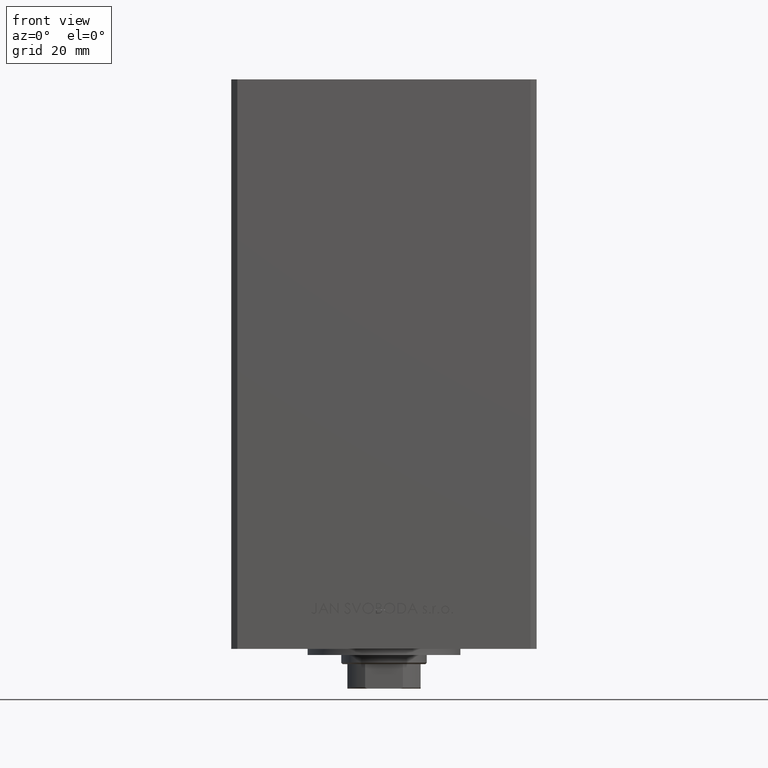
[diagram: clean part render]
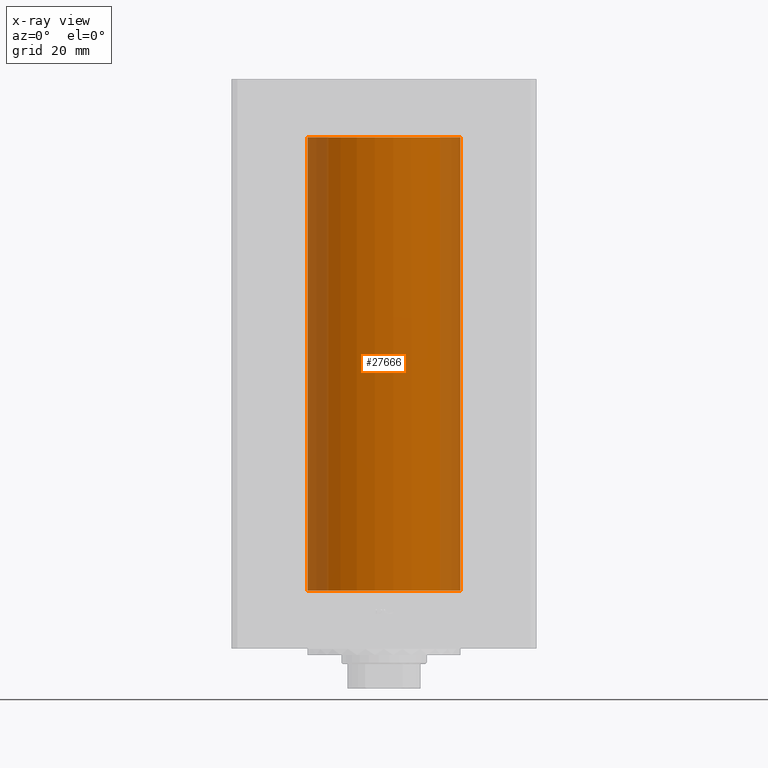
[diagram: x-ray — body ghosted, one internal face saturated and labeled with its STEP entity id]
A machine part, front view, then the same camera in x-ray: the body is ghosted and one INTERNAL B-rep face — a face not visible from any outside direction — is saturated and labeled: STEP entity #27666.
In plain terms, the highlighted cylindrical surface (partial cylindrical patch) has radius 25 mm, axis along (-0, -0, -1).
Its self-contained STEP definition (entity closure, byte-faithful):
#1744 = AXIS2_PLACEMENT_3D ( 'NONE', #31601, #8244, #46748 ) ;
#2388 = CARTESIAN_POINT ( 'NONE',  ( 0.000000000000000000, 0.000000000000000000, 0.000000000000000000 ) ) ;
#3133 = ORIENTED_EDGE ( 'NONE', *, *, #22912, .F. ) ;
#7223 = DIRECTION ( 'NONE',  ( -0.000000000000000000, -0.000000000000000000, -1.000000000000000000 ) ) ;
#8244 = DIRECTION ( 'NONE',  ( -0.000000000000000000, -0.000000000000000000, -1.000000000000000000 ) ) ;
#8840 = ORIENTED_EDGE ( 'NONE', *, *, #17920, .F. ) ;
#9288 = DIRECTION ( 'NONE',  ( -0.000000000000000000, 0.000000000000000000, 1.000000000000000000 ) ) ;
#9852 = CARTESIAN_POINT ( 'NONE',  ( 25.00000000000000000, 3.061616997868383043E-15, 148.5000000000000000 ) ) ;
#9975 = DIRECTION ( 'NONE',  ( -0.000000000000000000, -0.000000000000000000, -1.000000000000000000 ) ) ;
#10243 = AXIS2_PLACEMENT_3D ( 'NONE', #31930, #9288, #24456 ) ;
#10398 = CARTESIAN_POINT ( 'NONE',  ( -25.00000000000000000, 0.000000000000000000, 0.000000000000000000 ) ) ;
#11685 = CARTESIAN_POINT ( 'NONE',  ( 25.00000000000000000, 3.061616997868383043E-15, 148.5000000000000000 ) ) ;
#14026 = ORIENTED_EDGE ( 'NONE', *, *, #45930, .T. ) ;
#16495 = CARTESIAN_POINT ( 'NONE',  ( 25.00000000000000000, 3.061616997868383043E-15, 0.000000000000000000 ) ) ;
#17310 = DIRECTION ( 'NONE',  ( -0.000000000000000000, 0.000000000000000000, 1.000000000000000000 ) ) ;
#17920 = EDGE_CURVE ( 'NONE', #20097, #40903, #32855, .T. ) ;
#18065 = EDGE_CURVE ( 'NONE', #40419, #34075, #37784, .T. ) ;
#19452 = FACE_OUTER_BOUND ( 'NONE', #44530, .T. ) ;
#20097 = VERTEX_POINT ( 'NONE', #24302 ) ;
#21690 = ORIENTED_EDGE ( 'NONE', *, *, #18065, .T. ) ;
#22912 = EDGE_CURVE ( 'NONE', #40903, #34075, #24626, .T. ) ;
#24302 = CARTESIAN_POINT ( 'NONE',  ( -25.00000000000000000, 0.000000000000000000, 148.5000000000000000 ) ) ;
#24456 = DIRECTION ( 'NONE',  ( 1.000000000000000000, 0.000000000000000000, 0.000000000000000000 ) ) ;
#24626 = CIRCLE ( 'NONE', #40464, 25.00000000000000000 ) ;
#25374 = CARTESIAN_POINT ( 'NONE',  ( -25.00000000000000000, 0.000000000000000000, 148.5000000000000000 ) ) ;
#27666 = ADVANCED_FACE ( 'NONE', ( #19452 ), #46030, .F. ) ;
#28422 = VECTOR ( 'NONE', #7223, 1000.000000000000000 ) ;
#31601 = CARTESIAN_POINT ( 'NONE',  ( 0.000000000000000000, 0.000000000000000000, 148.5000000000000000 ) ) ;
#31930 = CARTESIAN_POINT ( 'NONE',  ( 0.000000000000000000, 0.000000000000000000, 148.5000000000000000 ) ) ;
#32855 = LINE ( 'NONE', #25374, #33961 ) ;
#33961 = VECTOR ( 'NONE', #9975, 1000.000000000000000 ) ;
#34075 = VERTEX_POINT ( 'NONE', #16495 ) ;
#35663 = CIRCLE ( 'NONE', #10243, 25.00000000000000000 ) ;
#37784 = LINE ( 'NONE', #11685, #28422 ) ;
#39673 = DIRECTION ( 'NONE',  ( 1.000000000000000000, 0.000000000000000000, 0.000000000000000000 ) ) ;
#40419 = VERTEX_POINT ( 'NONE', #9852 ) ;
#40464 = AXIS2_PLACEMENT_3D ( 'NONE', #2388, #17310, #39673 ) ;
#40903 = VERTEX_POINT ( 'NONE', #10398 ) ;
#44530 = EDGE_LOOP ( 'NONE', ( #14026, #21690, #3133, #8840 ) ) ;
#45930 = EDGE_CURVE ( 'NONE', #20097, #40419, #35663, .T. ) ;
#46030 = CYLINDRICAL_SURFACE ( 'NONE', #1744, 25.00000000000000000 ) ;
#46748 = DIRECTION ( 'NONE',  ( -1.000000000000000000, 0.000000000000000000, 0.000000000000000000 ) ) ;